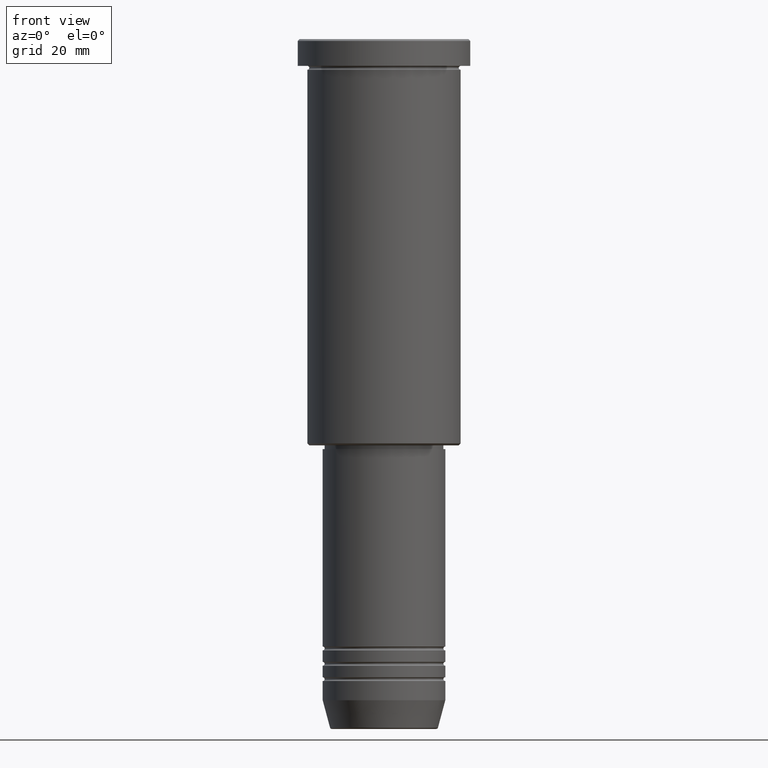
[diagram: clean part render]
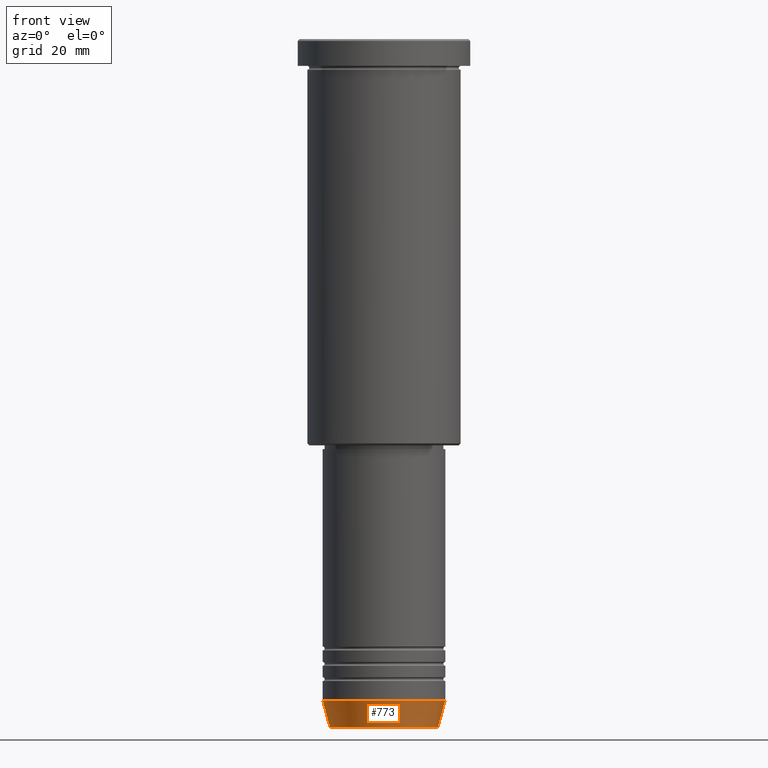
[diagram: same view with one face highlighted and labeled with its STEP entity id]
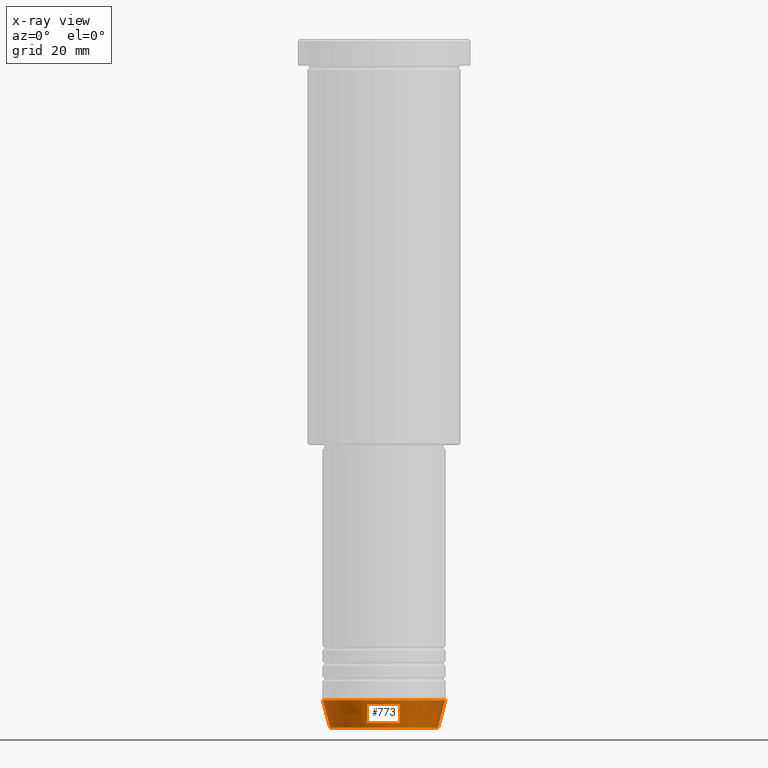
[diagram: x-ray of the same camera — body ghosted, the highlighted face saturated]
A machine part, front view. The second image highlights one B-rep face of the part: STEP entity #773.
The next image is the same camera in x-ray: the body ghosted, the highlighted face saturated — about 0% of this face is hidden behind the body in this view.
In plain terms, the highlighted conical surface has half-angle 15 deg.
Its self-contained STEP definition (entity closure, byte-faithful):
#71 = CARTESIAN_POINT ( 'NONE',  ( 16.00000000000000000, 0.000000000000000000, -172.5000000000000284 ) ) ;
#139 = ORIENTED_EDGE ( 'NONE', *, *, #850, .T. ) ;
#189 = AXIS2_PLACEMENT_3D ( 'NONE', #798, #236, #971 ) ;
#203 = DIRECTION ( 'NONE',  ( -0.000000000000000000, -0.000000000000000000, 1.000000000000000000 ) ) ;
#223 = ORIENTED_EDGE ( 'NONE', *, *, #521, .F. ) ;
#236 = DIRECTION ( 'NONE',  ( -0.000000000000000000, -0.000000000000000000, 1.000000000000000000 ) ) ;
#240 = CONICAL_SURFACE ( 'NONE', #922, 16.00000000000000000, 0.2617993877991500740 ) ;
#277 = VERTEX_POINT ( 'NONE', #574 ) ;
#282 = DIRECTION ( 'NONE',  ( 1.000000000000000000, 0.000000000000000000, 0.000000000000000000 ) ) ;
#323 = LINE ( 'NONE', #420, #732 ) ;
#333 = EDGE_CURVE ( 'NONE', #277, #972, #647, .T. ) ;
#368 = VECTOR ( 'NONE', #916, 1000.000000000000000 ) ;
#420 = CARTESIAN_POINT ( 'NONE',  ( 16.00000000000000000, 0.000000000000000000, -172.5000000000000284 ) ) ;
#433 = CARTESIAN_POINT ( 'NONE',  ( 14.08968047592163941, 0.000000000000000000, -179.6294095225512422 ) ) ;
#465 = CARTESIAN_POINT ( 'NONE',  ( -16.00000000000000000, 1.959434878635765131E-15, -172.5000000000000284 ) ) ;
#521 = EDGE_CURVE ( 'NONE', #972, #849, #1023, .T. ) ;
#559 = CARTESIAN_POINT ( 'NONE',  ( 0.000000000000000000, 0.000000000000000000, -172.5000000000000284 ) ) ;
#574 = CARTESIAN_POINT ( 'NONE',  ( -14.08968047592163941, 1.842461544110202058E-15, -179.6294095225512422 ) ) ;
#637 = DIRECTION ( 'NONE',  ( 1.000000000000000000, 0.000000000000000000, 0.000000000000000000 ) ) ;
#647 = LINE ( 'NONE', #1007, #368 ) ;
#668 = CARTESIAN_POINT ( 'NONE',  ( 0.000000000000000000, 0.000000000000000000, -172.5000000000000284 ) ) ;
#720 = ORIENTED_EDGE ( 'NONE', *, *, #947, .T. ) ;
#732 = VECTOR ( 'NONE', #819, 1000.000000000000000 ) ;
#773 = ADVANCED_FACE ( 'NONE', ( #1119 ), #240, .T. ) ;
#775 = ORIENTED_EDGE ( 'NONE', *, *, #333, .F. ) ;
#776 = CIRCLE ( 'NONE', #189, 14.08968047592163941 ) ;
#798 = CARTESIAN_POINT ( 'NONE',  ( 0.000000000000000000, 0.000000000000000000, -179.6294095225512422 ) ) ;
#819 = DIRECTION ( 'NONE',  ( 0.2588190451025213501, 0.000000000000000000, 0.9659258262890680902 ) ) ;
#849 = VERTEX_POINT ( 'NONE', #71 ) ;
#850 = EDGE_CURVE ( 'NONE', #956, #849, #323, .T. ) ;
#916 = DIRECTION ( 'NONE',  ( -0.2588190451025213501, 3.169619151431772337E-17, 0.9659258262890680902 ) ) ;
#922 = AXIS2_PLACEMENT_3D ( 'NONE', #668, #203, #282 ) ;
#947 = EDGE_CURVE ( 'NONE', #277, #956, #776, .T. ) ;
#956 = VERTEX_POINT ( 'NONE', #433 ) ;
#971 = DIRECTION ( 'NONE',  ( 1.000000000000000000, 0.000000000000000000, 0.000000000000000000 ) ) ;
#972 = VERTEX_POINT ( 'NONE', #465 ) ;
#1007 = CARTESIAN_POINT ( 'NONE',  ( -16.00000000000000000, 1.959434878635765131E-15, -172.5000000000000284 ) ) ;
#1023 = CIRCLE ( 'NONE', #1145, 16.00000000000000000 ) ;
#1119 = FACE_OUTER_BOUND ( 'NONE', #1139, .T. ) ;
#1139 = EDGE_LOOP ( 'NONE', ( #775, #720, #139, #223 ) ) ;
#1145 = AXIS2_PLACEMENT_3D ( 'NONE', #559, #1179, #637 ) ;
#1179 = DIRECTION ( 'NONE',  ( -0.000000000000000000, -0.000000000000000000, 1.000000000000000000 ) ) ;